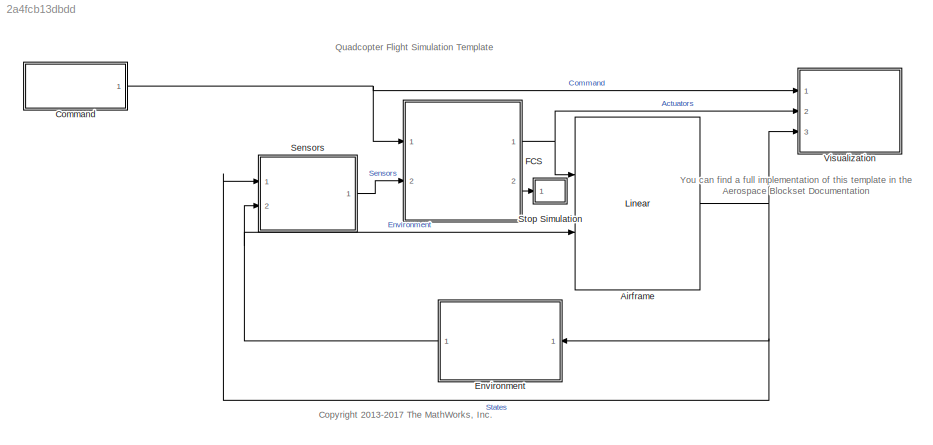
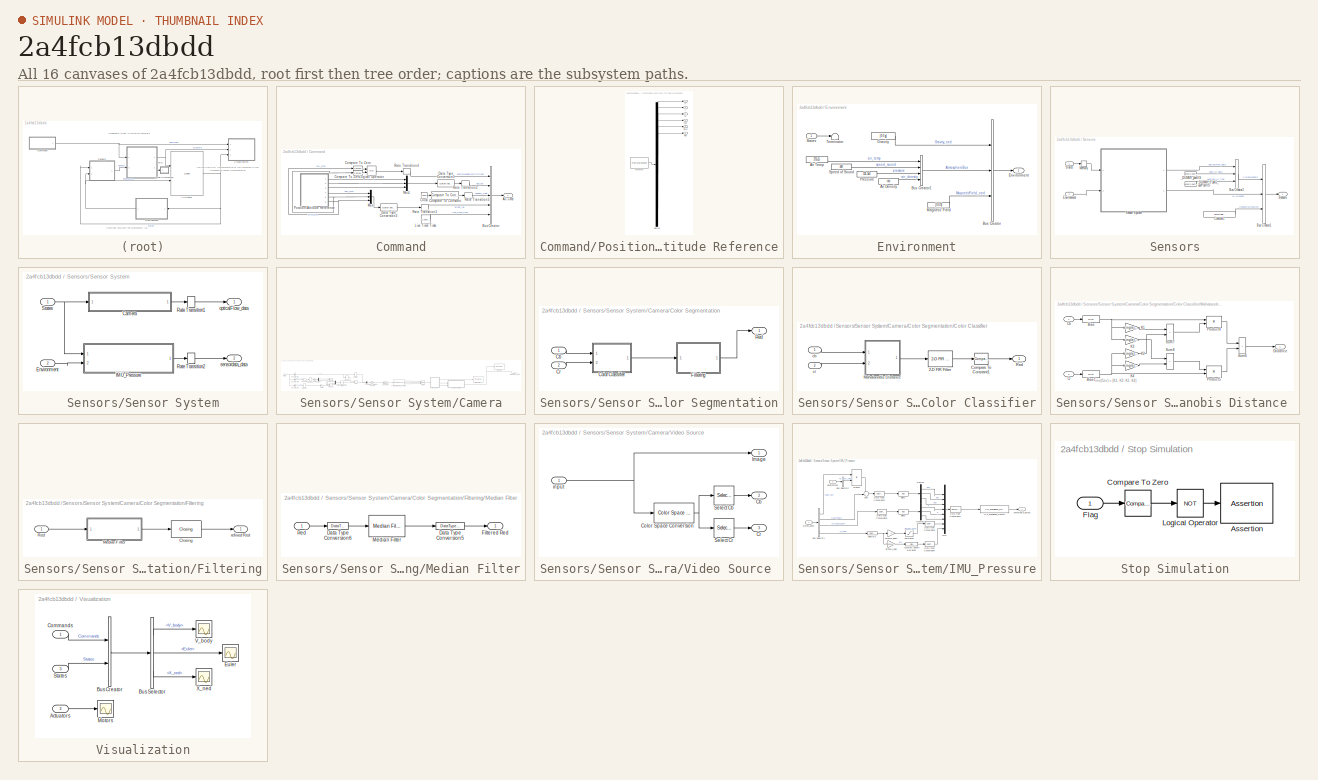
[diagram: thumbnail index - all 16 canvases of the model, root first then tree order]
MODEL slx_2a4fcb13dbdd
KIND model
CONFIG AbsTol = auto
CONFIG EnableMultiTasking = off
CONFIG FixedStep = auto
CONFIG MaxStep = auto
CONFIG MinStep = auto
CONFIG RelTol = 1e-3
CONFIG SampleTimeConstraint = Unconstrained
CONFIG Solver = VariableStepAuto
CONFIG SolverName = VariableStepAuto
CONFIG StartTime = 0.0
CONFIG StopTime = 10.0
BLOCK [Reference] Airframe  REF=plantLibrary/Linear
  Ports = [2, 1]
  SourceBlock = plantLibrary/Linear
BLOCK [SubSystem] Command
  Ports = [0, 1]
  RequestExecContextInheritance = off
  VariantControl = VSS_COMMAND_SIGBLDR
BLOCK [Outport] Command/AC Cmd
  OutDataTypeStr = Bus: CommandBus
  VectorParamsAs1DForOutWhenUnconnected = off
BLOCK [BusCreator] Command/Bus Creator
  DisplayOption = bar
  InheritFromInputs = on
  Inputs = 5
  NonVirtualBus = on
  OutDataTypeStr = Bus: CommandBus
  Ports = [5, 1]
BLOCK [Clock] Command/Clock
BLOCK [Reference] Command/Compare To Constant  REF=simulink/Logic and Bit
Operations/Compare
To Constant
  Ports = [1, 1]
  SourceBlock = simulink/Logic and Bit\nOperations/Compare\nTo Constant
  SourceProductBaseCode = SL
  SourceType = Compare To Constant
BLOCK [Reference] Command/Compare To Zero  REF=simulink/Logic and Bit
Operations/Compare
To Zero
  Ports = [1, 1]
  SourceBlock = simulink/Logic and Bit\nOperations/Compare\nTo Zero
  SourceProductBaseCode = SL
  SourceType = Compare To Zero
BLOCK [Reference] Command/Compare To Zero1  REF=simulink/Logic and Bit
Operations/Compare
To Zero
  Ports = [1, 1]
  SourceBlock = simulink/Logic and Bit\nOperations/Compare\nTo Zero
  SourceProductBaseCode = SL
  SourceType = Compare To Zero
BLOCK [DataTypeConversion] Command/Data Type Conversion1
  OutDataTypeStr = single
  RndMeth = Floor
  SaturateOnIntegerOverflow = off
BLOCK [DataTypeConversion] Command/Data Type Conversion3
  OutDataTypeStr = single
  RndMeth = Floor
  SaturateOnIntegerOverflow = off
BLOCK [Reference] Command/Live Time Ticks  REF=simulink/Sources/Counter
Free-Running
  Ports = [0, 1]
  SourceBlock = simulink/Sources/Counter\nFree-Running
  SourceProductBaseCode = SL
  SourceType = Counter Free-Running
BLOCK [Logic] Command/Logical Operator
  AllPortsSameDT = off
  OutDataTypeStr = boolean
  Ports = [2, 1]
BLOCK [Mux] Command/Mux
  DisplayOption = bar
  Inputs = 3
  Ports = [3, 1]
BLOCK [Mux] Command/Mux1
  DisplayOption = bar
  Inputs = 3
  Ports = [3, 1]
BLOCK [SubSystem] Command/Position//Attitude Reference
  ClipboardFcn = sigbuilder_block('clipboard');
  CloseFcn = sigbuilder_block('close');
  ContinueFcn = sigbuilder_block('continue');
  CopyFcn = sigbuilder_block('copy');
  DeleteFcn = sigbuilder_block('delete');
  LoadFcn = sigbuilder_block('load');
  MaskHideContents = on
  ModelCloseFcn = sigbuilder_block('modelClose');
  NameChangeFcn = sigbuilder_block('namechange');
  OpenFcn = sigbuilder_block('open',[435 197.25 555 408.75 ]);
  PauseFcn = sigbuilder_block('pause');
  Ports = [0, 6]
  PreSaveFcn = sigbuilder_block('preSave');
  RequestExecContextInheritance = off
  StartFcn = sigbuilder_block('start');
  StopFcn = sigbuilder_block('stop');
  Tag = STV Subsys
BLOCK [Demux] Command/Position//Attitude Reference/Demux
  DisplayOption = none
  Outputs = 6
  Ports = [1, 6]
  Tag = STV Demux
BLOCK [FromWorkspace] Command/Position//Attitude Reference/FromWs
  Tag = STV FromWs
  VariableName = tuvar
BLOCK [Outport] Command/Position//Attitude Reference/Pitch
  Port = 5
  Tag = STV Outport
  VectorParamsAs1DForOutWhenUnconnected = off
BLOCK [Outport] Command/Position//Attitude Reference/Roll
  Port = 6
  Tag = STV Outport
  VectorParamsAs1DForOutWhenUnconnected = off
BLOCK [Outport] Command/Position//Attitude Reference/X
  Tag = STV Outport
  VectorParamsAs1DForOutWhenUnconnected = off
BLOCK [Outport] Command/Position//Attitude Reference/Y
  Port = 2
  Tag = STV Outport
  VectorParamsAs1DForOutWhenUnconnected = off
BLOCK [Outport] Command/Position//Attitude Reference/Yaw
  Port = 4
  Tag = STV Outport
  VectorParamsAs1DForOutWhenUnconnected = off
BLOCK [Outport] Command/Position//Attitude Reference/Z
  Port = 3
  Tag = STV Outport
  VectorParamsAs1DForOutWhenUnconnected = off
BLOCK [RateTransition] Command/Rate Transition1
  OutPortSampleTime = Ts
BLOCK [RateTransition] Command/Rate Transition2
  OutPortSampleTime = Ts
BLOCK [RateTransition] Command/Rate Transition3
  OutPortSampleTime = Ts
BLOCK [RateTransition] Command/Rate Transition4
  OutPortSampleTime = Ts
BLOCK [SubSystem] Environment
  Ports = [1, 1]
  RequestExecContextInheritance = off
  TreatAsAtomicUnit = on
  VariantControl = VSS_ENVIRONMENT_CST
BLOCK [Constant] Environment/Air Density
  Value = rho
BLOCK [Constant] Environment/Air Temp
  Value = 273+15
BLOCK [BusCreator] Environment/Bus Creator
  DisplayOption = bar
  InheritFromInputs = on
  Inputs = 3
  NonVirtualBus = on
  OutDataTypeStr = Bus: EnvironmentBus
  Ports = [3, 1]
BLOCK [BusCreator] Environment/Bus Creator1
  DisplayOption = bar
  InheritFromInputs = on
  Inputs = 4
  NonVirtualBus = on
  OutDataTypeStr = Bus: AtmosphereBus
  Ports = [4, 1]
BLOCK [Outport] Environment/Environment
  VectorParamsAs1DForOutWhenUnconnected = off
BLOCK [Constant] Environment/Gravity
  Value = [0 0 g]
BLOCK [Constant] Environment/Magnetic Field
  Value = [0 0 0]
BLOCK [Constant] Environment/Pressure
  Value = 101.3e3
BLOCK [Constant] Environment/Speed of Sound
  Value = 340
BLOCK [Inport] Environment/States
  OutDataTypeStr = Bus: StatesBus
BLOCK [Terminator] Environment/Terminator
BLOCK [ModelReference] FCS
  ModelNameDialog = flightControlSystem.slx
  ModelReferenceVersion = 1.96
  Ports = [2, 2]
BLOCK [SubSystem] Sensors
  Ports = [2, 1]
  RequestExecContextInheritance = off
  TreatAsAtomicUnit = on
  VariantControl = VSS_SENSORS_FEEDTHROUGH
BLOCK [BusCreator] Sensors/Bus Creator1
  DisplayOption = bar
  InheritFromInputs = on
  Inputs = 3
  NonVirtualBus = on
  OutDataTypeStr = Bus: SensorsBus
  Ports = [3, 1]
BLOCK [BusCreator] Sensors/Bus Creator2
  DisplayOption = bar
  InheritFromInputs = on
  Inputs = 3
  NonVirtualBus = on
  OutDataTypeStr = Bus: extraSensorData_t
  Ports = [3, 1]
BLOCK [Constant] Sensors/Constant1
  OutDataTypeStr = single
  Value = sensorCalibrationData
BLOCK [Inport] Sensors/Environment
  OutDataTypeStr = Bus: EnvironmentBus
  Port = 2
BLOCK [Memory] Sensors/Memory
  InheritSampleTime = on
  InitialCondition = States
BLOCK [SubSystem] Sensors/Sensor System
  Ports = [2, 2]
  RequestExecContextInheritance = off
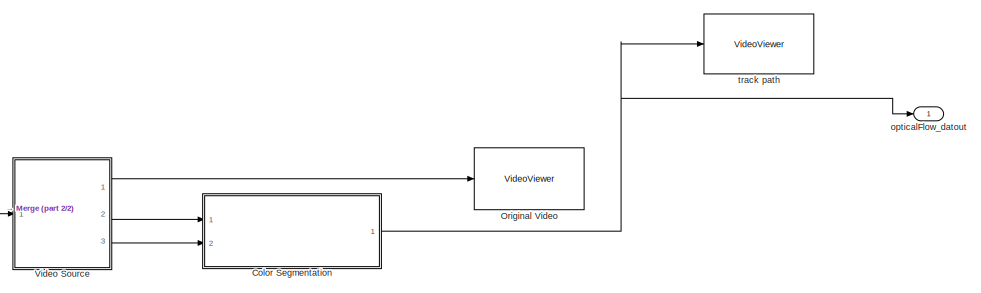
[diagram: Sensors/Sensor System/Camera - part 1/2, right side, full height]
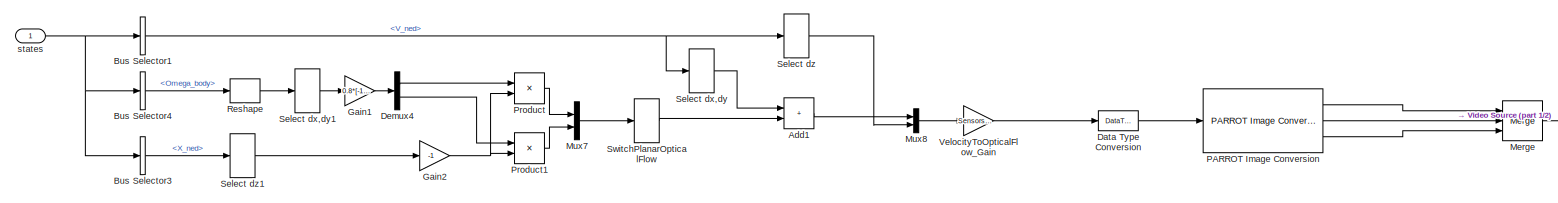
[diagram: Sensors/Sensor System/Camera - part 2/2, middle left region]
BLOCK [SubSystem] Sensors/Sensor System/Camera
  AncestorBlock = sensorsLibrary/Camera
  Ports = [1, 1]
  RequestExecContextInheritance = off
BLOCK [Sum] Sensors/Sensor System/Camera/Add1
  IconShape = rectangular
  Ports = [2, 1]
BLOCK [BusSelector] Sensors/Sensor System/Camera/Bus Selector1
  OutputSignals = V_ned
  Ports = [1, 1]
BLOCK [BusSelector] Sensors/Sensor System/Camera/Bus Selector3
  OutputSignals = X_ned
  Ports = [1, 1]
BLOCK [BusSelector] Sensors/Sensor System/Camera/Bus Selector4
  OutputSignals = Omega_body
  Ports = [1, 1]
BLOCK [SubSystem] Sensors/Sensor System/Camera/Color Segmentation
  Ports = [2, 1]
  RequestExecContextInheritance = off
BLOCK [Inport] Sensors/Sensor System/Camera/Color Segmentation/Cb
BLOCK [SubSystem] Sensors/Sensor System/Camera/Color Segmentation/Color Classifier
  Ports = [2, 1]
  RequestExecContextInheritance = off
BLOCK [Reference] Sensors/Sensor System/Camera/Color Segmentation/Color Classifier/2-D FIR Filter  REF=visionfilter/2-D FIR Filter
  Ports = [1, 1]
  SourceBlock = visionfilter/2-D FIR Filter
  SourceProductBaseCode = VP
  SourceType = 2-D FIR Filter
BLOCK [Reference] Sensors/Sensor System/Camera/Color Segmentation/Color Classifier/Compare To Constant1  REF=simulink/Logic and Bit
Operations/Compare
To Constant
  Ports = [1, 1]
  SourceBlock = simulink/Logic and Bit\nOperations/Compare\nTo Constant
  SourceProductBaseCode = SL
  SourceType = Compare To Constant
BLOCK [SubSystem] Sensors/Sensor System/Camera/Color Segmentation/Color Classifier/Mahalanobis Distance 
  Ports = [2, 1]
  RequestExecContextInheritance = off
BLOCK [Bias] Sensors/Sensor System/Camera/Color Segmentation/Color Classifier/Mahalanobis Distance /Bias
  Bias = -single(90/255)
  SaturateOnIntegerOverflow = off
BLOCK [Bias] Sensors/Sensor System/Camera/Color Segmentation/Color Classifier/Mahalanobis Distance /Bias1
  Bias = -single(240/255)
  SaturateOnIntegerOverflow = off
BLOCK [Inport] Sensors/Sensor System/Camera/Color Segmentation/Color Classifier/Mahalanobis Distance /Cb
BLOCK [Inport] Sensors/Sensor System/Camera/Color Segmentation/Color Classifier/Mahalanobis Distance /Cr
  Port = 2
BLOCK [Outport] Sensors/Sensor System/Camera/Color Segmentation/Color Classifier/Mahalanobis Distance /Distance
BLOCK [Gain] Sensors/Sensor System/Camera/Color Segmentation/Color Classifier/Mahalanobis Distance /K1
  Gain = single(1.8328501e+03)
  OutDataTypeStr = Inherit: Same as input
  ParamDataTypeStr = Inherit: Same as input
  SaturateOnIntegerOverflow = on
BLOCK [Gain] Sensors/Sensor System/Camera/Color Segmentation/Color Classifier/Mahalanobis Distance /K2
  Gain = single(2.2506719e+03)
  OutDataTypeStr = Inherit: Same as input
  ParamDataTypeStr = Inherit: Same as input
  SaturateOnIntegerOverflow = on
BLOCK [Gain] Sensors/Sensor System/Camera/Color Segmentation/Color Classifier/Mahalanobis Distance /K3
  Gain = single(2.2506719e+03)
  OutDataTypeStr = Inherit: Same as input
  ParamDataTypeStr = Inherit: Same as input
  SaturateOnIntegerOverflow = on
BLOCK [Gain] Sensors/Sensor System/Camera/Color Segmentation/Color Classifier/Mahalanobis Distance /K4
  Gain = single(6.8658257e+03)
  OutDataTypeStr = Inherit: Same as input
  ParamDataTypeStr = Inherit: Same as input
  SaturateOnIntegerOverflow = on
BLOCK [Product] Sensors/Sensor System/Camera/Color Segmentation/Color Classifier/Mahalanobis Distance /Product4
  InputSameDT = on
  OutDataTypeStr = Inherit: Same as first input
  Ports = [2, 1]
  SaturateOnIntegerOverflow = on
BLOCK [Product] Sensors/Sensor System/Camera/Color Segmentation/Color Classifier/Mahalanobis Distance /Product5
  InputSameDT = on
  OutDataTypeStr = Inherit: Same as first input
  Ports = [2, 1]
  SaturateOnIntegerOverflow = on
BLOCK [Sum] Sensors/Sensor System/Camera/Color Segmentation/Color Classifier/Mahalanobis Distance /Sum6
  IconShape = rectangular
  InputSameDT = on
  OutDataTypeStr = Inherit: Same as first input
  Ports = [2, 1]
  SaturateOnIntegerOverflow = on
BLOCK [Sum] Sensors/Sensor System/Camera/Color Segmentation/Color Classifier/Mahalanobis Distance /Sum7
  IconShape = rectangular
  InputSameDT = on
  OutDataTypeStr = Inherit: Same as first input
  Ports = [2, 1]
  SaturateOnIntegerOverflow = on
BLOCK [Sum] Sensors/Sensor System/Camera/Color Segmentation/Color Classifier/Mahalanobis Distance /Sum8
  IconShape = rectangular
  InputSameDT = on
  OutDataTypeStr = Inherit: Same as first input
  Ports = [2, 1]
  SaturateOnIntegerOverflow = on
BLOCK [Outport] Sensors/Sensor System/Camera/Color Segmentation/Color Classifier/Red 
BLOCK [Inport] Sensors/Sensor System/Camera/Color Segmentation/Color Classifier/cb
BLOCK [Inport] Sensors/Sensor System/Camera/Color Segmentation/Color Classifier/cr
  Port = 2
BLOCK [Inport] Sensors/Sensor System/Camera/Color Segmentation/Cr
  Port = 2
BLOCK [SubSystem] Sensors/Sensor System/Camera/Color Segmentation/Filtering
  Ports = [1, 1]
  RequestExecContextInheritance = off
BLOCK [Reference] Sensors/Sensor System/Camera/Color Segmentation/Filtering/Closing  REF=visionmorphops/Closing
  Ports = [1, 1]
  SourceBlock = visionmorphops/Closing
  SourceProductBaseCode = VP
  SourceType = Closing
BLOCK [SubSystem] Sensors/Sensor System/Camera/Color Segmentation/Filtering/Median Filter
  Ports = [1, 1]
  RequestExecContextInheritance = off
BLOCK [DataTypeConversion] Sensors/Sensor System/Camera/Color Segmentation/Filtering/Median Filter/Data Type Conversion5
  OutDataTypeStr = boolean
BLOCK [DataTypeConversion] Sensors/Sensor System/Camera/Color Segmentation/Filtering/Median Filter/Data Type Conversion6
  OutDataTypeStr = single
BLOCK [Outport] Sensors/Sensor System/Camera/Color Segmentation/Filtering/Median Filter/Filtered Red
BLOCK [Reference] Sensors/Sensor System/Camera/Color Segmentation/Filtering/Median Filter/Median Filter  REF=visionanalysis/Median Filter
  Ports = [1, 1]
  SourceBlock = visionanalysis/Median Filter
  SourceProductBaseCode = VP
  SourceType = Median Filter
BLOCK [Inport] Sensors/Sensor System/Camera/Color Segmentation/Filtering/Median Filter/Red
BLOCK [Inport] Sensors/Sensor System/Camera/Color Segmentation/Filtering/Red
BLOCK [Outport] Sensors/Sensor System/Camera/Color Segmentation/Filtering/refined Red
BLOCK [Outport] Sensors/Sensor System/Camera/Color Segmentation/Red
BLOCK [DataTypeConversion] Sensors/Sensor System/Camera/Data Type Conversion
  OutDataTypeStr = single
  RndMeth = Floor
  SaturateOnIntegerOverflow = off
BLOCK [Demux] Sensors/Sensor System/Camera/Demux4
  Outputs = 2
  Ports = [1, 2]
BLOCK [Gain] Sensors/Sensor System/Camera/Gain1
  Gain = 0.8*[-1,1]
BLOCK [Gain] Sensors/Sensor System/Camera/Gain2
  Gain = -1
BLOCK [Merge] Sensors/Sensor System/Camera/Merge
  Inputs = 3
  Ports = [3, 1]
BLOCK [Mux] Sensors/Sensor System/Camera/Mux7
  DisplayOption = bar
  Inputs = 2
  Ports = [2, 1]
BLOCK [Mux] Sensors/Sensor System/Camera/Mux8
  DisplayOption = bar
  Inputs = 2
  Ports = [2, 1]
BLOCK [VideoViewer] Sensors/Sensor System/Camera/Original Video
  FigPos = [685 765 681 682]
  Ports = [1]
  ScopeSpecificationString = vipscopes.VideoViewerScopeCfg('CurrentConfiguration', extmgr.ConfigurationSet(extmgr.Configuration('Core','General UI',true,'ShowPlaybackToolbar',false,'ShowSaveConfigSet',true,'FigureProperties',[],'MessageLogAutoOpenMode','for warn/fail messages','FigureColor',[0.941176470588235 0.941176470588235 0.941176470588235]),extmgr.Configuration('Core','Source UI',true,'PlaybackToolbar',true),extmgr.Conf...<+544ch>
  colormapValue = gray(256)
  trueSizedOnce = on
BLOCK [Reference] Sensors/Sensor System/Camera/PARROT Image Conversion  REF=parrotlib/PARROT Image Conversion
  Ports = [1, 3]
  SourceBlock = parrotlib/PARROT Image Conversion
  SourceProductBaseCode = MINIDRONES
  SourceType = parrot.ImageProcess
  Tag = IP_FORMAT
BLOCK [Product] Sensors/Sensor System/Camera/Product
  Ports = [2, 1]
BLOCK [Product] Sensors/Sensor System/Camera/Product1
  Ports = [2, 1]
BLOCK [Reshape] Sensors/Sensor System/Camera/Reshape
  Ports = [1, 1]
BLOCK [Selector] Sensors/Sensor System/Camera/Select dx,dy
  IndexOptions = Index vector (dialog)
  Indices = [1 2]
  InputPortWidth = 3
  OutputSizes = 1
  Ports = [1, 1]
BLOCK [Selector] Sensors/Sensor System/Camera/Select dx,dy1
  IndexOptions = Index vector (dialog)
  Indices = [1 2]
  InputPortWidth = 3
  OutputSizes = 1
  Ports = [1, 1]
BLOCK [Selector] Sensors/Sensor System/Camera/Select dz
  IndexOptions = Index vector (dialog)
  Indices = 3
  InputPortWidth = 3
  OutputSizes = 1
  Ports = [1, 1]
BLOCK [Selector] Sensors/Sensor System/Camera/Select dz1
  IndexOptions = Index vector (dialog)
  Indices = 3
  InputPortWidth = 3
  OutputSizes = 1
  Ports = [1, 1]
BLOCK [Selector] Sensors/Sensor System/Camera/SwitchPlanarOpticalFlow
  IndexOptions = Index vector (dialog)
  Indices = [2 1]
  InputPortWidth = 2
  OutputSizes = 1
  Ports = [1, 1]
BLOCK [Gain] Sensors/Sensor System/Camera/VelocityToOpticalFlow_Gain
  Gain = Sensors.velocityToOpticalFlowGain
BLOCK [SubSystem] Sensors/Sensor System/Camera/Video Source 
  Ports = [1, 3]
  RequestExecContextInheritance = off
BLOCK [Outport] Sensors/Sensor System/Camera/Video Source /Cb
  Port = 2
BLOCK [Reference] Sensors/Sensor System/Camera/Video Source /Color Space Conversion  REF=visionconversions/Color Space
 Conversion
  Ports = [1, 1]
  SourceBlock = visionconversions/Color Space\n Conversion
  SourceProductBaseCode = VP
  SourceType = Color Space Conversion
BLOCK [Outport] Sensors/Sensor System/Camera/Video Source /Cr
  Port = 3
BLOCK [Outport] Sensors/Sensor System/Camera/Video Source /Image
BLOCK [Selector] Sensors/Sensor System/Camera/Video Source /Select Cb
  IndexOptions = Select all,Select all,Index vector (dialog)
  Indices = [1 3],1,2
  InputPortWidth = 3
  NumberOfDimensions = 3
  OutputSizes = 1,1,1
  Ports = [1, 1]
BLOCK [Selector] Sensors/Sensor System/Camera/Video Source /Select Cr
  IndexOptions = Select all,Select all,Index vector (dialog)
  Indices = [1 3],1,3
  InputPortWidth = 3
  NumberOfDimensions = 3
  OutputSizes = 1,1,1
  Ports = [1, 1]
BLOCK [Inport] Sensors/Sensor System/Camera/Video Source /input 
BLOCK [Outport] Sensors/Sensor System/Camera/opticalFlow_datout
  VectorParamsAs1DForOutWhenUnconnected = off
BLOCK [Inport] Sensors/Sensor System/Camera/states
  NameLocation = top
BLOCK [VideoViewer] Sensors/Sensor System/Camera/track path 
  FigPos = [1 766 683 691]
  Ports = [1]
  ScopeSpecificationString = vipscopes.VideoViewerScopeCfg('CurrentConfiguration', extmgr.ConfigurationSet(extmgr.Configuration('Core','General UI',true,'ShowPlaybackToolbar',false,'ShowSaveConfigSet',true,'FigureProperties',[],'MessageLogAutoOpenMode','for warn/fail messages','FigureColor',[0.941176470588235 0.941176470588235 0.941176470588235]),extmgr.Configuration('Core','Source UI',true,'PlaybackToolbar',true),extmgr.Conf...<+542ch>
  colormapValue = gray(256)
  trueSizedOnce = on
BLOCK [Inport] Sensors/Sensor System/Environment
  Port = 2
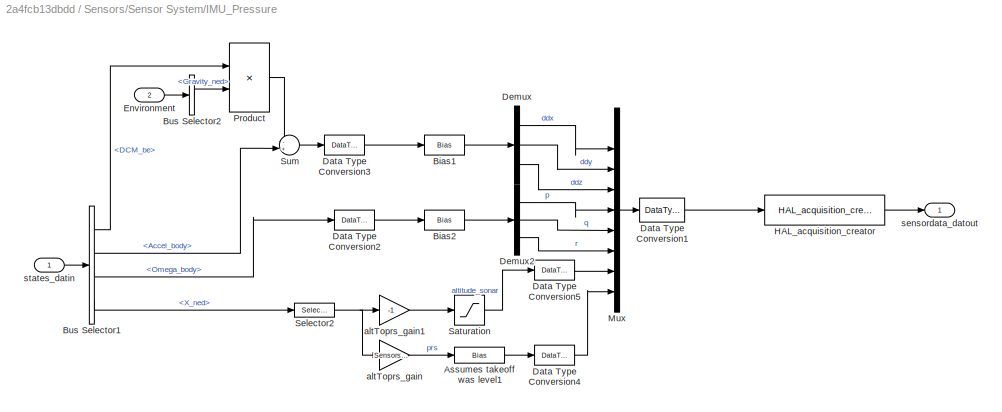
BLOCK [SubSystem] Sensors/Sensor System/IMU_Pressure
  Ports = [2, 1]
  RequestExecContextInheritance = off
BLOCK [Bias] Sensors/Sensor System/IMU_Pressure/Assumes takeoff was level1
  Bias = Sensors.altToPrsBias
  SaturateOnIntegerOverflow = off
BLOCK [Bias] Sensors/Sensor System/IMU_Pressure/Bias1
  Bias = Sensors.IMU.accBias'
  SaturateOnIntegerOverflow = off
BLOCK [Bias] Sensors/Sensor System/IMU_Pressure/Bias2
  Bias = Sensors.IMU.gyroBias'
  SaturateOnIntegerOverflow = off
BLOCK [BusSelector] Sensors/Sensor System/IMU_Pressure/Bus Selector1
  OutputSignals = DCM_be,Accel_body,Omega_body,X_ned
  Ports = [1, 4]
BLOCK [BusSelector] Sensors/Sensor System/IMU_Pressure/Bus Selector2
  OutputSignals = Gravity_ned
  Ports = [1, 1]
BLOCK [DataTypeConversion] Sensors/Sensor System/IMU_Pressure/Data Type Conversion1
  OutDataTypeStr = single
  RndMeth = Floor
  SaturateOnIntegerOverflow = off
BLOCK [DataTypeConversion] Sensors/Sensor System/IMU_Pressure/Data Type Conversion2
  OutDataTypeStr = single
  RndMeth = Floor
  SaturateOnIntegerOverflow = off
BLOCK [DataTypeConversion] Sensors/Sensor System/IMU_Pressure/Data Type Conversion3
  OutDataTypeStr = single
  RndMeth = Floor
  SaturateOnIntegerOverflow = off
BLOCK [DataTypeConversion] Sensors/Sensor System/IMU_Pressure/Data Type Conversion4
  OutDataTypeStr = single
  RndMeth = Floor
  SaturateOnIntegerOverflow = off
BLOCK [DataTypeConversion] Sensors/Sensor System/IMU_Pressure/Data Type Conversion5
  OutDataTypeStr = single
  RndMeth = Floor
  SaturateOnIntegerOverflow = off
BLOCK [Demux] Sensors/Sensor System/IMU_Pressure/Demux
  Outputs = 3
  Ports = [1, 3]
BLOCK [Demux] Sensors/Sensor System/IMU_Pressure/Demux2
  Outputs = 3
  Ports = [1, 3]
BLOCK [Inport] Sensors/Sensor System/IMU_Pressure/Environment
  Port = 2
BLOCK [Reference] Sensors/Sensor System/IMU_Pressure/HAL_acquisition_creator  REF=sensorsLibrary/HAL_acquisition_creator
  Ports = [1, 1]
  SourceBlock = sensorsLibrary/HAL_acquisition_creator
  SourceType = SubSystem
BLOCK [Mux] Sensors/Sensor System/IMU_Pressure/Mux
  DisplayOption = bar
  Inputs = 9
  Ports = [9, 1]
BLOCK [Product] Sensors/Sensor System/IMU_Pressure/Product
  Multiplication = Matrix(*)
  Ports = [2, 1]
BLOCK [Saturate] Sensors/Sensor System/IMU_Pressure/Saturation
  LowerLimit = Sensors.altSensorMin
  OutDataTypeStr = single
  UpperLimit = inf
BLOCK [Selector] Sensors/Sensor System/IMU_Pressure/Selector2
  IndexOptions = Index vector (dialog)
  Indices = [3]
  InputPortWidth = 3
  OutputSizes = 1
  Ports = [1, 1]
BLOCK [Sum] Sensors/Sensor System/IMU_Pressure/Sum
  Inputs = -+|
  Ports = [2, 1]
BLOCK [Gain] Sensors/Sensor System/IMU_Pressure/altToprs_gain
  Gain = Sensors.altToPrsGain
  OutDataTypeStr = single
  ParamDataTypeStr = single
BLOCK [Gain] Sensors/Sensor System/IMU_Pressure/altToprs_gain1
  Gain = -1
  OutDataTypeStr = single
  ParamDataTypeStr = single
BLOCK [Outport] Sensors/Sensor System/IMU_Pressure/sensordata_datout
  OutDataTypeStr = Bus: HAL_acquisition_t
  VectorParamsAs1DForOutWhenUnconnected = off
BLOCK [Inport] Sensors/Sensor System/IMU_Pressure/states_datin
  OutDataTypeStr = Bus: StatesBus
BLOCK [RateTransition] Sensors/Sensor System/Rate Transition1
  OutPortSampleTime = Ts
BLOCK [RateTransition] Sensors/Sensor System/Rate Transition2
  OutPortSampleTime = Ts
BLOCK [Inport] Sensors/Sensor System/States
BLOCK [Outport] Sensors/Sensor System/opticalFlow_data
  VectorParamsAs1DForOutWhenUnconnected = off
BLOCK [Outport] Sensors/Sensor System/sensordata_data
  OutDataTypeStr = Bus: HAL_acquisition_t
  Port = 2
  VectorParamsAs1DForOutWhenUnconnected = off
BLOCK [Outport] Sensors/Sensors
  OutDataTypeStr = Bus: SensorsBus
  VectorParamsAs1DForOutWhenUnconnected = off
BLOCK [Inport] Sensors/States
  OutDataTypeStr = Bus: StatesBus
BLOCK [Constant] Sensors/_DUMMY_FLAG_usePosVIS
  OutDataTypeStr = single
  Value = Sensors.dummy.usePosVISFlag
BLOCK [Constant] Sensors/_DUMMY_posVIS
  OutDataTypeStr = single
  Value = Sensors.dummy.posVISNoVisionAvail
BLOCK [SubSystem] Stop Simulation
  Ports = [1]
  RequestExecContextInheritance = off
BLOCK [Assertion] Stop Simulation/Assertion
BLOCK [Reference] Stop Simulation/Compare To Zero  REF=simulink/Logic and Bit
Operations/Compare
To Zero
  Ports = [1, 1]
  SourceBlock = simulink/Logic and Bit\nOperations/Compare\nTo Zero
  SourceProductBaseCode = SL
  SourceType = Compare To Zero
BLOCK [Inport] Stop Simulation/Flag
BLOCK [Logic] Stop Simulation/Logical Operator
  AllPortsSameDT = off
  Operator = NOT
  OutDataTypeStr = boolean
  Ports = [1, 1]
BLOCK [SubSystem] Visualization
  Ports = [3]
  RequestExecContextInheritance = off
  VariantControl = VSS_VISUALIZATION_SCOPES
BLOCK [Inport] Visualization/Actuators
  Port = 2
BLOCK [BusCreator] Visualization/Bus Creator
  DisplayOption = bar
  InheritFromInputs = on
  Inputs = 2
  Ports = [2, 1]
BLOCK [BusSelector] Visualization/Bus Selector
  OutputSignals = States.V_body,States.Euler,States.X_ned
  Ports = [1, 3]
BLOCK [Inport] Visualization/Commands
  OutDataTypeStr = Bus: CommandBus
BLOCK [Scope] Visualization/Euler
  Floating = off
  NumInputPorts = 1
  Ports = [1]
  ScopeSpecificationString = Simulink.scopes.TimeScopeBlockCfg('CurrentConfiguration', extmgr.ConfigurationSet(extmgr.Configuration('Core','General UI',true),extmgr.Configuration('Core','Source UI',true),extmgr.Configuration('Sources','WiredSimulink',true,'DataLoggingVariableName','ScopeData2','DataLoggingSaveFormat','StructureWithTime','DataLoggingDecimation','1'),extmgr.Configuration('Visuals','Time Domain',true,'Serialized...<+1593ch>
BLOCK [Scope] Visualization/Motors
  Floating = off
  NumInputPorts = 1
  Ports = [1]
  ScopeSpecificationString = Simulink.scopes.TimeScopeBlockCfg('CurrentConfiguration', extmgr.ConfigurationSet(extmgr.Configuration('Core','General UI',true),extmgr.Configuration('Core','Source UI',true),extmgr.Configuration('Sources','WiredSimulink',true,'DataLoggingVariableName','ScopeData1','DataLoggingSaveFormat','StructureWithTime','DataLoggingDecimation','1'),extmgr.Configuration('Visuals','Time Domain',true,'Serialized...<+1593ch>
BLOCK [Inport] Visualization/States
  OutDataTypeStr = Bus: StatesBus
  Port = 3
BLOCK [Scope] Visualization/V_body
  Floating = off
  NumInputPorts = 1
  Ports = [1]
  ScopeSpecificationString = Simulink.scopes.TimeScopeBlockCfg('CurrentConfiguration', extmgr.ConfigurationSet(extmgr.Configuration('Core','General UI',true),extmgr.Configuration('Core','Source UI',true),extmgr.Configuration('Sources','WiredSimulink',true,'DataLoggingSaveFormat','StructureWithTime','DataLoggingDecimation','1'),extmgr.Configuration('Visuals','Time Domain',true,'SerializedDisplays',{struct('MinYLimReal','-2.968...<+1548ch>
BLOCK [Scope] Visualization/X_ned
  Floating = off
  NumInputPorts = 1
  Ports = [1]
  ScopeSpecificationString = Simulink.scopes.TimeScopeBlockCfg('CurrentConfiguration', extmgr.ConfigurationSet(extmgr.Configuration('Core','General UI',true),extmgr.Configuration('Core','Source UI',true),extmgr.Configuration('Sources','WiredSimulink',true,'DataLoggingVariableName','ScopeData1','DataLoggingSaveFormat','StructureWithTime','DataLoggingDecimation','1'),extmgr.Configuration('Visuals','Time Domain',true,'Serialized...<+1593ch>
ANNOTATION (root): <copyright redacted>
ANNOTATION (root): Quadcopter Flight Simulation Template
ANNOTATION (root): You can find a full implementation of this template in the Aerospace Blockset Documentation
ANNOTATION Sensors/Sensor System/Camera/Color Segmentation/Color Classifier/Mahalanobis Distance : inv(Cov) = [K1, K3; K2, K4]
NET Airframe:1 -> Environment:1, Sensors:1, Visualization:3
LINE Command/Bus Creator:1 -> Command/AC Cmd:1
LINE Command/Clock:1 -> Command/Compare To Constant:1
LINE Command/Compare To Constant:1 -> Command/Rate Transition3:1
LINE Command/Compare To Zero1:1 -> Command/Logical Operator:2
LINE Command/Compare To Zero:1 -> Command/Logical Operator:1
LINE Command/Data Type Conversion1:1 -> Command/Rate Transition2:1
LINE Command/Data Type Conversion3:1 -> Command/Rate Transition1:1
LINE Command/Live Time Ticks:1 -> Command/Bus Creator:5
LINE Command/Logical Operator:1 -> Command/Rate Transition4:1
LINE Command/Mux1:1 -> Command/Data Type Conversion1:1
LINE Command/Mux:1 -> Command/Data Type Conversion3:1
LINE Command/Position//Attitude Reference:1 -> Command/Mux1:1
LINE Command/Position//Attitude Reference:2 -> Command/Mux1:2
LINE Command/Position//Attitude Reference:3 -> Command/Mux1:3
LINE Command/Position//Attitude Reference:4 -> Command/Mux:1
NET Command/Position//Attitude Reference:5 -> Command/Compare To Zero1:1, Command/Mux:2
NET Command/Position//Attitude Reference:6 -> Command/Compare To Zero:1, Command/Mux:3
LINE Command/Rate Transition1:1 -> Command/Bus Creator:4
LINE Command/Rate Transition2:1 -> Command/Bus Creator:2
LINE Command/Rate Transition3:1 -> Command/Bus Creator:3
LINE Command/Rate Transition4:1 -> Command/Bus Creator:1
NET Command:1 -> FCS:1, Visualization:1
LINE Environment/Air Density:1 -> Environment/Bus Creator1:4
LINE Environment/Air Temp:1 -> Environment/Bus Creator1:1
LINE Environment/Bus Creator1:1 -> Environment/Bus Creator:2
LINE Environment/Bus Creator:1 -> Environment/Environment:1
LINE Environment/Gravity:1 -> Environment/Bus Creator:1
LINE Environment/Magnetic Field:1 -> Environment/Bus Creator:3
LINE Environment/Pressure:1 -> Environment/Bus Creator1:3
LINE Environment/Speed of Sound:1 -> Environment/Bus Creator1:2
LINE Environment/States:1 -> Environment/Terminator:1
NET Environment:1 -> Airframe:2, Sensors:2
NET FCS:1 -> Airframe:1, Visualization:2
LINE FCS:2 -> Stop Simulation:1
LINE Sensors/Bus Creator1:1 -> Sensors/Sensors:1
LINE Sensors/Bus Creator2:1 -> Sensors/Bus Creator1:1
LINE Sensors/Constant1:1 -> Sensors/Bus Creator1:3
LINE Sensors/Environment:1 -> Sensors/Sensor System:2
LINE Sensors/Memory:1 -> Sensors/Sensor System:1
LINE Sensors/Sensor System/Camera:1 -> Sensors/Sensor System/Rate Transition1:1
LINE Sensors/Sensor System/Environment:1 -> Sensors/Sensor System/IMU_Pressure:2
LINE Sensors/Sensor System/IMU_Pressure/Assumes takeoff was level1:1 -> Sensors/Sensor System/IMU_Pressure/Data Type Conversion4:1
LINE Sensors/Sensor System/IMU_Pressure/Bias1:1 -> Sensors/Sensor System/IMU_Pressure/Demux:1
LINE Sensors/Sensor System/IMU_Pressure/Bias2:1 -> Sensors/Sensor System/IMU_Pressure/Demux2:1
LINE Sensors/Sensor System/IMU_Pressure/Bus Selector1:1 -> Sensors/Sensor System/IMU_Pressure/Product:1
LINE Sensors/Sensor System/IMU_Pressure/Bus Selector1:2 -> Sensors/Sensor System/IMU_Pressure/Sum:2
LINE Sensors/Sensor System/IMU_Pressure/Bus Selector1:3 -> Sensors/Sensor System/IMU_Pressure/Data Type Conversion2:1
LINE Sensors/Sensor System/IMU_Pressure/Bus Selector1:4 -> Sensors/Sensor System/IMU_Pressure/Selector2:1
LINE Sensors/Sensor System/IMU_Pressure/Bus Selector2:1 -> Sensors/Sensor System/IMU_Pressure/Product:2
LINE Sensors/Sensor System/IMU_Pressure/Data Type Conversion1:1 -> Sensors/Sensor System/IMU_Pressure/HAL_acquisition_creator:1
LINE Sensors/Sensor System/IMU_Pressure/Data Type Conversion2:1 -> Sensors/Sensor System/IMU_Pressure/Bias2:1
LINE Sensors/Sensor System/IMU_Pressure/Data Type Conversion3:1 -> Sensors/Sensor System/IMU_Pressure/Bias1:1
LINE Sensors/Sensor System/IMU_Pressure/Data Type Conversion4:1 -> Sensors/Sensor System/IMU_Pressure/Mux:9
LINE Sensors/Sensor System/IMU_Pressure/Data Type Conversion5:1 -> Sensors/Sensor System/IMU_Pressure/Mux:8
LINE Sensors/Sensor System/IMU_Pressure/Demux2:1 -> Sensors/Sensor System/IMU_Pressure/Mux:5
LINE Sensors/Sensor System/IMU_Pressure/Demux2:2 -> Sensors/Sensor System/IMU_Pressure/Mux:6
LINE Sensors/Sensor System/IMU_Pressure/Demux2:3 -> Sensors/Sensor System/IMU_Pressure/Mux:7
LINE Sensors/Sensor System/IMU_Pressure/Demux:1 -> Sensors/Sensor System/IMU_Pressure/Mux:2
LINE Sensors/Sensor System/IMU_Pressure/Demux:2 -> Sensors/Sensor System/IMU_Pressure/Mux:3
LINE Sensors/Sensor System/IMU_Pressure/Demux:3 -> Sensors/Sensor System/IMU_Pressure/Mux:4
LINE Sensors/Sensor System/IMU_Pressure/Environment:1 -> Sensors/Sensor System/IMU_Pressure/Bus Selector2:1
LINE Sensors/Sensor System/IMU_Pressure/HAL_acquisition_creator:1 -> Sensors/Sensor System/IMU_Pressure/sensordata_datout:1
LINE Sensors/Sensor System/IMU_Pressure/Mux:1 -> Sensors/Sensor System/IMU_Pressure/Data Type Conversion1:1
LINE Sensors/Sensor System/IMU_Pressure/Product:1 -> Sensors/Sensor System/IMU_Pressure/Sum:1
LINE Sensors/Sensor System/IMU_Pressure/Saturation:1 -> Sensors/Sensor System/IMU_Pressure/Data Type Conversion5:1
NET Sensors/Sensor System/IMU_Pressure/Selector2:1 -> Sensors/Sensor System/IMU_Pressure/altToprs_gain1:1, Sensors/Sensor System/IMU_Pressure/altToprs_gain:1
LINE Sensors/Sensor System/IMU_Pressure/Sum:1 -> Sensors/Sensor System/IMU_Pressure/Data Type Conversion3:1
LINE Sensors/Sensor System/IMU_Pressure/altToprs_gain1:1 -> Sensors/Sensor System/IMU_Pressure/Saturation:1
LINE Sensors/Sensor System/IMU_Pressure/altToprs_gain:1 -> Sensors/Sensor System/IMU_Pressure/Assumes takeoff was level1:1
LINE Sensors/Sensor System/IMU_Pressure/states_datin:1 -> Sensors/Sensor System/IMU_Pressure/Bus Selector1:1
LINE Sensors/Sensor System/IMU_Pressure:1 -> Sensors/Sensor System/Rate Transition2:1
LINE Sensors/Sensor System/Rate Transition1:1 -> Sensors/Sensor System/opticalFlow_data:1
LINE Sensors/Sensor System/Rate Transition2:1 -> Sensors/Sensor System/sensordata_data:1
NET Sensors/Sensor System/States:1 -> Sensors/Sensor System/Camera:1, Sensors/Sensor System/IMU_Pressure:1
LINE Sensors/Sensor System:1 -> Sensors/Bus Creator2:1
LINE Sensors/Sensor System:2 -> Sensors/Bus Creator1:2
LINE Sensors/States:1 -> Sensors/Memory:1
LINE Sensors/_DUMMY_FLAG_usePosVIS:1 -> Sensors/Bus Creator2:3
LINE Sensors/_DUMMY_posVIS:1 -> Sensors/Bus Creator2:2
LINE Sensors:1 -> FCS:2
LINE Stop Simulation/Compare To Zero:1 -> Stop Simulation/Logical Operator:1
LINE Stop Simulation/Flag:1 -> Stop Simulation/Compare To Zero:1
LINE Stop Simulation/Logical Operator:1 -> Stop Simulation/Assertion:1
LINE Visualization/Actuators:1 -> Visualization/Motors:1
LINE Visualization/Bus Creator:1 -> Visualization/Bus Selector:1
LINE Visualization/Bus Selector:1 -> Visualization/V_body:1
LINE Visualization/Bus Selector:2 -> Visualization/Euler:1
LINE Visualization/Bus Selector:3 -> Visualization/X_ned:1
LINE Visualization/Commands:1 -> Visualization/Bus Creator:1
LINE Visualization/States:1 -> Visualization/Bus Creator:2
note: NET lines group one-source signal fan-out (src -> all destinations, sorted); 1:1 wires keep LINE
